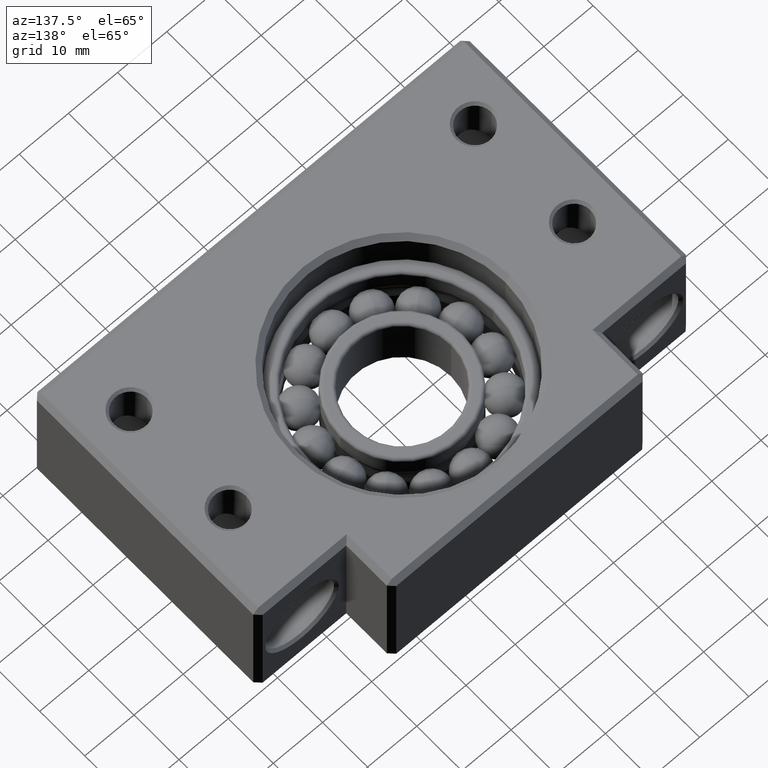
[diagram: clean part render]
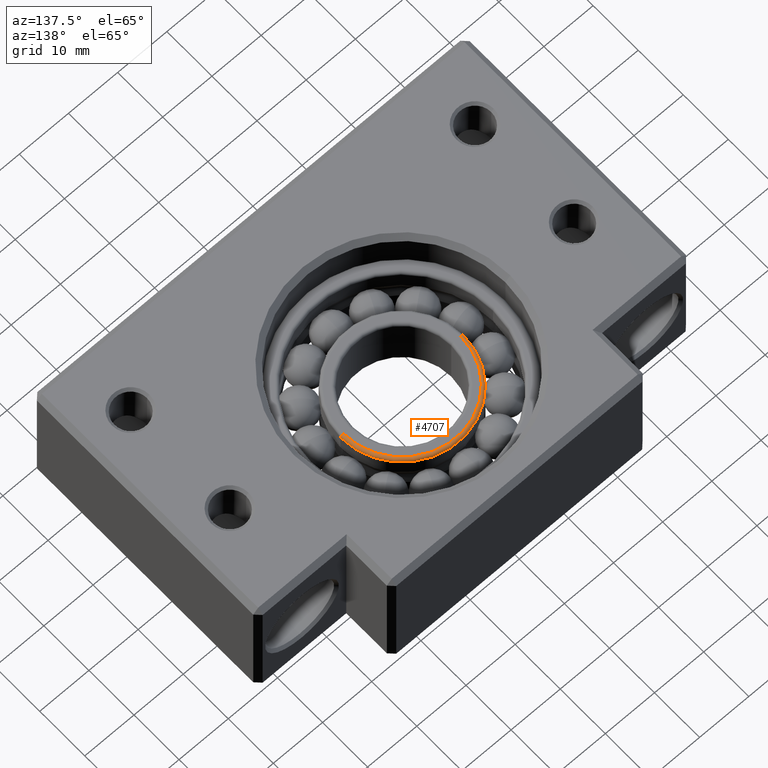
[diagram: same view with one face highlighted and labeled with its STEP entity id]
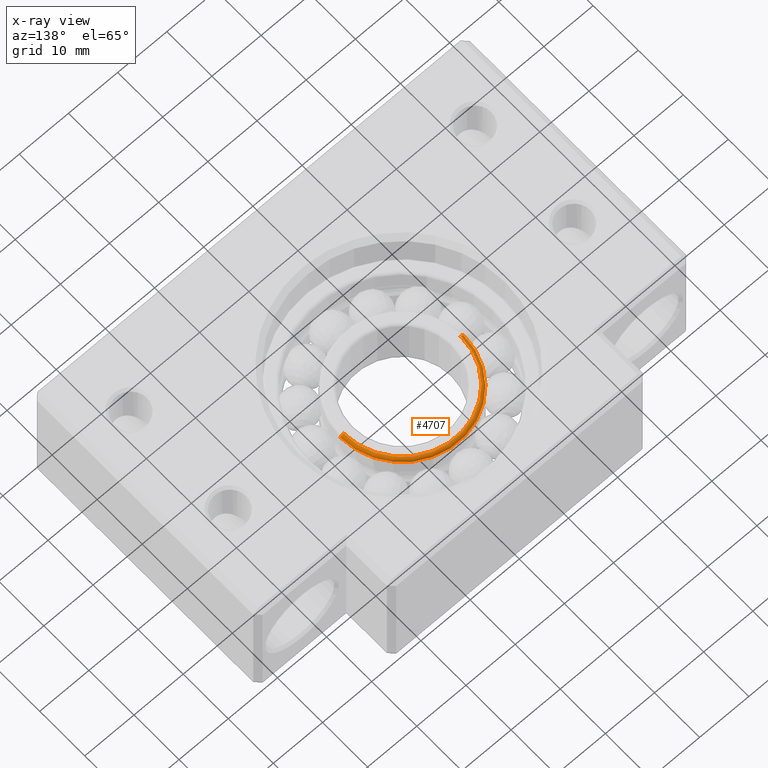
[diagram: x-ray of the same camera — body ghosted, the highlighted face saturated]
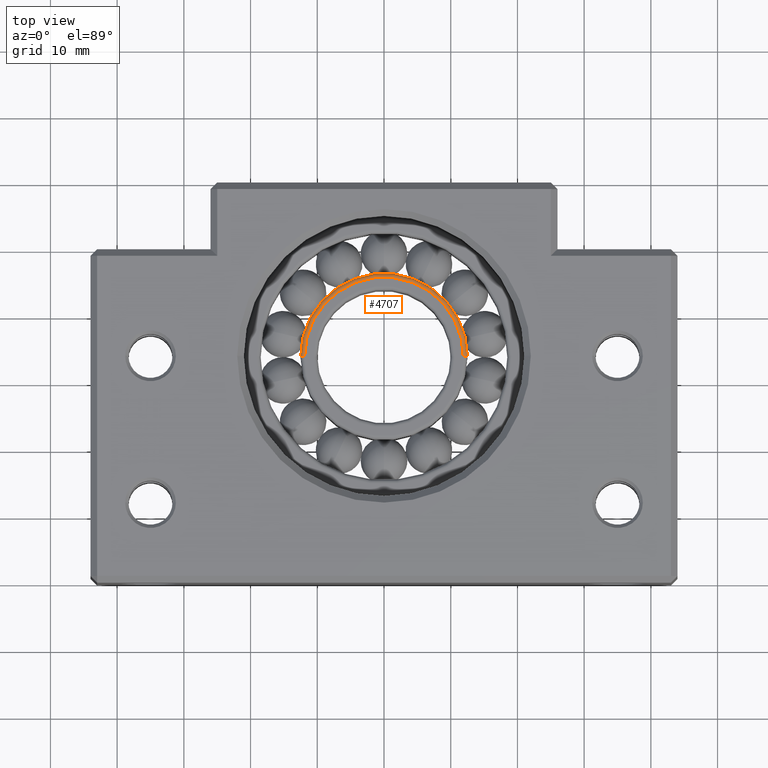
[diagram: same view with one face highlighted and labeled with its STEP entity id]
A machine part, auxiliary view. The second image highlights one B-rep face of the part: STEP entity #4707.
The next image is the same camera in x-ray: the body ghosted, the highlighted face saturated — about 0% of this face is hidden behind the body in this view.
A second angle (top view) of the same face is appended — the face is thin or edge-on in the first view.
In plain terms, the highlighted toroidal blend (fillet) surface has major radius 11.9 mm and minor (blend) radius 0.6 mm.
Its self-contained STEP definition (entity closure, byte-faithful):
#1180 = CARTESIAN_POINT ( 'NONE',  ( 11.90000000000001500, 34.00000000000000000, 5.999999999999998200 ) ) ;
#2938 = DIRECTION ( 'NONE',  ( 1.000000000000000000, 0.0000000000000000000, 0.0000000000000000000 ) ) ;
#2939 = DIRECTION ( 'NONE',  ( -0.0000000000000000000, -0.0000000000000000000, 1.000000000000000000 ) ) ;
#2940 = CARTESIAN_POINT ( 'NONE',  ( 1.377740456500814400E-014, 34.00000000000000000, 5.999999999999998200 ) ) ;
#2941 = AXIS2_PLACEMENT_3D ( 'NONE', #2940, #2939, #2938 ) ;
#2942 = CIRCLE ( 'NONE', #2941, 11.90000000000000000 ) ;
#2970 = CARTESIAN_POINT ( 'NONE',  ( -12.49999999999998800, 34.00000000000000000, 5.399999999999998600 ) ) ;
#2976 = CARTESIAN_POINT ( 'NONE',  ( -11.89999999999998600, 34.00000000000000000, 5.999999999999998200 ) ) ;
#2998 = CARTESIAN_POINT ( 'NONE',  ( -11.89999999999998600, 34.00000000000000000, 5.399999999999998600 ) ) ;
#3000 = CARTESIAN_POINT ( 'NONE',  ( 12.50000000000001400, 34.00000000000000000, 5.399999999999998600 ) ) ;
#3001 = DIRECTION ( 'NONE',  ( 1.000000000000000000, 0.0000000000000000000, 0.0000000000000000000 ) ) ;
#3019 = DIRECTION ( 'NONE',  ( -0.0000000000000000000, -0.0000000000000000000, 1.000000000000000000 ) ) ;
#3020 = CARTESIAN_POINT ( 'NONE',  ( 1.377740456500814400E-014, 34.00000000000000000, 5.399999999999998600 ) ) ;
#3021 = AXIS2_PLACEMENT_3D ( 'NONE', #3020, #3019, #3001 ) ;
#3022 = CIRCLE ( 'NONE', #3021, 12.50000000000000000 ) ;
#3030 = DIRECTION ( 'NONE',  ( 1.000000000000000000, 0.0000000000000000000, 0.0000000000000000000 ) ) ;
#3031 = DIRECTION ( 'NONE',  ( -0.0000000000000000000, -0.0000000000000000000, 1.000000000000000000 ) ) ;
#3032 = CARTESIAN_POINT ( 'NONE',  ( 1.377740456500814400E-014, 34.00000000000000000, 5.399999999999998600 ) ) ;
#3033 = AXIS2_PLACEMENT_3D ( 'NONE', #3032, #3031, #3030 ) ;
#3035 = TOROIDAL_SURFACE ( 'NONE', #3033, 11.90000000000000000, 0.5999999999999998700 ) ;
#3036 = FACE_OUTER_BOUND ( 'NONE', #4609, .T. ) ;
#3056 = DIRECTION ( 'NONE',  ( -1.000000000000000000, 0.0000000000000000000, 0.0000000000000000000 ) ) ;
#3057 = DIRECTION ( 'NONE',  ( 1.224606353822377300E-016, 1.000000000000000000, 0.0000000000000000000 ) ) ;
#3058 = AXIS2_PLACEMENT_3D ( 'NONE', #2998, #3057, #3056 ) ;
#3059 = CIRCLE ( 'NONE', #3058, 0.5999999999999998700 ) ;
#3114 = DIRECTION ( 'NONE',  ( 0.0000000000000000000, 0.0000000000000000000, -1.000000000000000000 ) ) ;
#3115 = DIRECTION ( 'NONE',  ( 0.0000000000000000000, -1.000000000000000000, 0.0000000000000000000 ) ) ;
#3116 = CARTESIAN_POINT ( 'NONE',  ( 11.90000000000001500, 34.00000000000000000, 5.399999999999998600 ) ) ;
#3117 = AXIS2_PLACEMENT_3D ( 'NONE', #3116, #3115, #3114 ) ;
#3118 = CIRCLE ( 'NONE', #3117, 0.5999999999999998700 ) ;
#3825 = VERTEX_POINT ( 'NONE', #1180 ) ;
#4609 = EDGE_LOOP ( 'NONE', ( #4702, #4695, #4687, #4732 ) ) ;
#4680 = EDGE_CURVE ( 'NONE', #3825, #4689, #2942, .T. ) ;
#4687 = ORIENTED_EDGE ( 'NONE', *, *, #4680, .F. ) ;
#4689 = VERTEX_POINT ( 'NONE', #2976 ) ;
#4694 = VERTEX_POINT ( 'NONE', #2970 ) ;
#4695 = ORIENTED_EDGE ( 'NONE', *, *, #4703, .T. ) ;
#4698 = EDGE_CURVE ( 'NONE', #4699, #4694, #3022, .T. ) ;
#4699 = VERTEX_POINT ( 'NONE', #3000 ) ;
#4702 = ORIENTED_EDGE ( 'NONE', *, *, #4698, .T. ) ;
#4703 = EDGE_CURVE ( 'NONE', #4694, #4689, #3059, .T. ) ;
#4707 = ADVANCED_FACE ( 'NONE', ( #3036 ), #3035, .T. ) ;
#4732 = ORIENTED_EDGE ( 'NONE', *, *, #4738, .F. ) ;
#4738 = EDGE_CURVE ( 'NONE', #4699, #3825, #3118, .T. ) ;